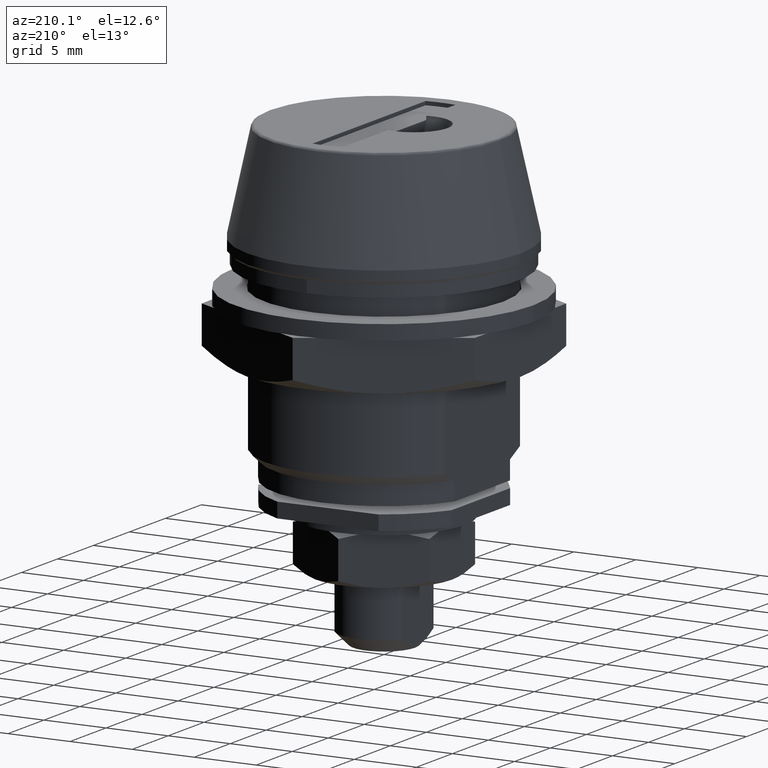
[diagram: clean part render]
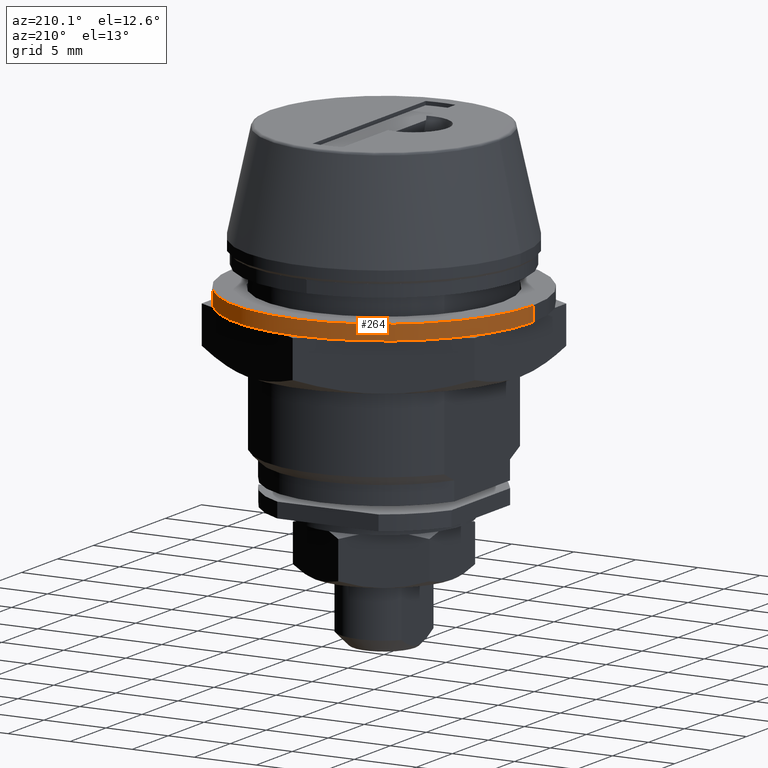
[diagram: same view with one face highlighted and labeled with its STEP entity id]
A machine part, auxiliary view. The second image highlights one B-rep face of the part: STEP entity #264.
In plain terms, the highlighted cylindrical surface (partial cylindrical patch) has radius 12 mm, axis along (-0, 0, 1).
Its self-contained STEP definition (entity closure, byte-faithful):
#264=ADVANCED_FACE('',(#456),#455,.T.);
#455=CYLINDRICAL_SURFACE('',#1983,1.20000000000E+001);
#456=FACE_OUTER_BOUND('',#1984,.T.);
#1980=CARTESIAN_POINT('',(-2.64969520067E-033,1.21108751715E-015,-5.80000000000E+000));
#1981=DIRECTION('',(-4.41615866778E-033,4.47493736939E-017,1.00000000000E+000));
#1982=DIRECTION('',(1.00000000000E+000,1.00923959762E-016,-1.00125322300E-034));
#1983=AXIS2_PLACEMENT_3D('',#1980,#1981,#1982);
#1984=EDGE_LOOP('',(#2920,#2921,#2922,#2923));
#2920=ORIENTED_EDGE('',*,*,#3675,.T.);
#2921=ORIENTED_EDGE('',*,*,#3680,.F.);
#2922=ORIENTED_EDGE('',*,*,#3670,.T.);
#2923=ORIENTED_EDGE('',*,*,#3681,.T.);
#3670=EDGE_CURVE('',#4053,#4054,#4055,.T.);
#3675=EDGE_CURVE('',#4082,#4081,#4089,.T.);
#3680=EDGE_CURVE('',#4053,#4081,#4121,.T.);
#3681=EDGE_CURVE('',#4054,#4082,#4127,.T.);
#4053=VERTEX_POINT('',#6596);
#4054=VERTEX_POINT('',#6597);
#4055=CIRCLE('',#6601,1.20000000000E+001);
#4081=VERTEX_POINT('',#6616);
#4082=VERTEX_POINT('',#6617);
#4089=CIRCLE('',#6625,1.20000000000E+001);
#4121=(BOUNDED_CURVE() B_SPLINE_CURVE(1,(#6640,#6641),.UNSPECIFIED.,.F.,.F.) B_SPLINE_CURVE_WITH_KNOTS((2,2),(8.33333134656E-002,9.16666653270E-001),.UNSPECIFIED.) CURVE() GEOMETRIC_REPRESENTATION_ITEM() RATIONAL_B_SPLINE_CURVE((1.00000000000E+000,1.00000000000E+000)) REPRESENTATION_ITEM('') );
#4127=(BOUNDED_CURVE() B_SPLINE_CURVE(1,(#6642,#6643),.UNSPECIFIED.,.F.,.F.) B_SPLINE_CURVE_WITH_KNOTS((2,2),(8.33333333333E-002,9.16666666667E-001),.UNSPECIFIED.) CURVE() GEOMETRIC_REPRESENTATION_ITEM() RATIONAL_B_SPLINE_CURVE((7.50000000000E-001,7.50000000000E-001)) REPRESENTATION_ITEM('') );
#6596=CARTESIAN_POINT('',(1.20000000000E+001,1.18423789293E-015,-7.00000000000E+000));
#6597=CARTESIAN_POINT('',(-1.20000000000E+001,1.46952762459E-015,-7.00000000000E+000));
#6598=CARTESIAN_POINT('',(0.00000000000E+000,0.00000000000E+000,-7.00000000000E+000));
#6599=DIRECTION('',(-0.00000000000E+000,0.00000000000E+000,1.00000000000E+000));
#6600=DIRECTION('',(-1.00000000000E+000,-0.00000000000E+000,-0.00000000000E+000));
#6601=AXIS2_PLACEMENT_3D('',#6598,#6599,#6600);
#6616=CARTESIAN_POINT('',(1.20000000000E+001,4.14483262527E-015,-5.80000000000E+000));
#6617=CARTESIAN_POINT('',(-1.20000000000E+001,-8.67347044502E-014,-5.80000000000E+000));
#6622=CARTESIAN_POINT('',(-9.45876463419E-045,-3.15544362088E-030,-5.80000000000E+000));
#6623=DIRECTION('',(5.04721003363E-029,-6.98296267769E-015,-1.00000000000E+000));
#6624=DIRECTION('',(-1.00000000000E+000,-7.35035267290E-015,8.55138046360E-031));
#6625=AXIS2_PLACEMENT_3D('',#6622,#6623,#6624);
#6640=CARTESIAN_POINT('',(1.20000000000E+001,2.36847578459E-015,-7.00000002861E+000));
#6641=CARTESIAN_POINT('',(1.20000000000E+001,2.42217503344E-015,-5.80000001929E+000));
#6642=CARTESIAN_POINT('',(-1.20000000000E+001,0.00000000000E+000,-7.00000000000E+000));
#6643=CARTESIAN_POINT('',(-1.20000000000E+001,0.00000000000E+000,-5.80000000000E+000));